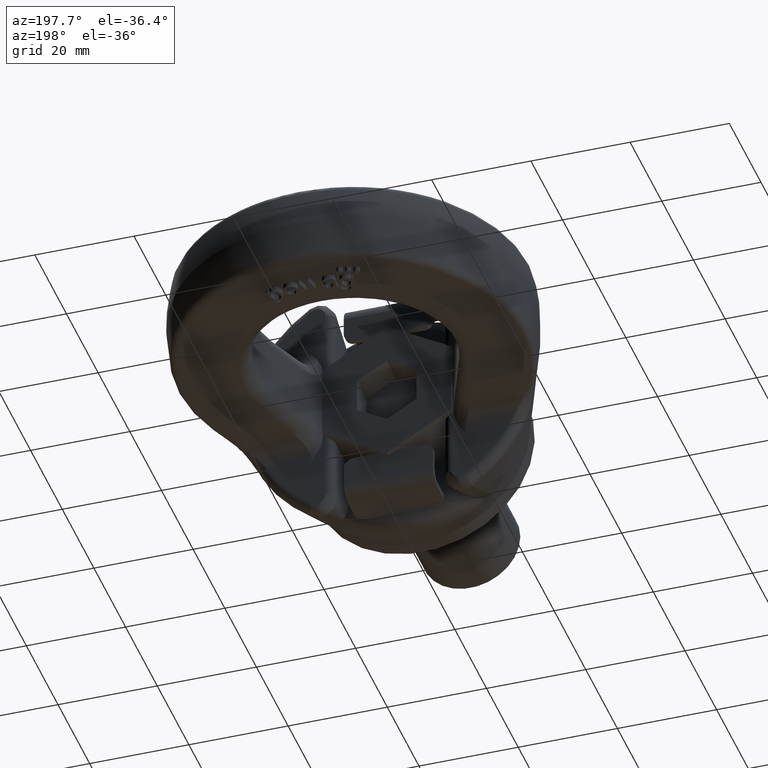
[diagram: clean part render]
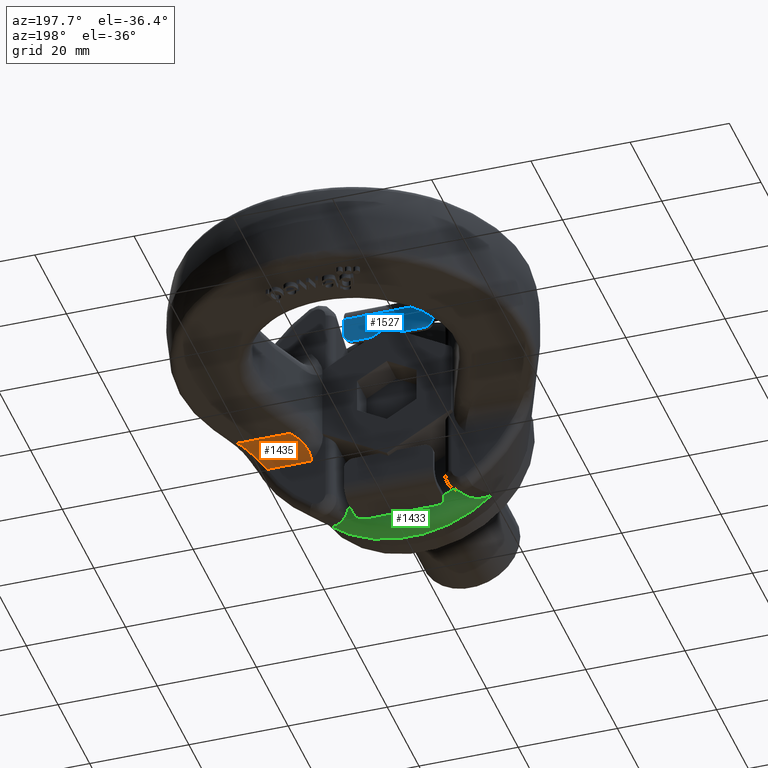
[diagram: same view with three faces highlighted in distinct colors, each labeled with its STEP entity id]
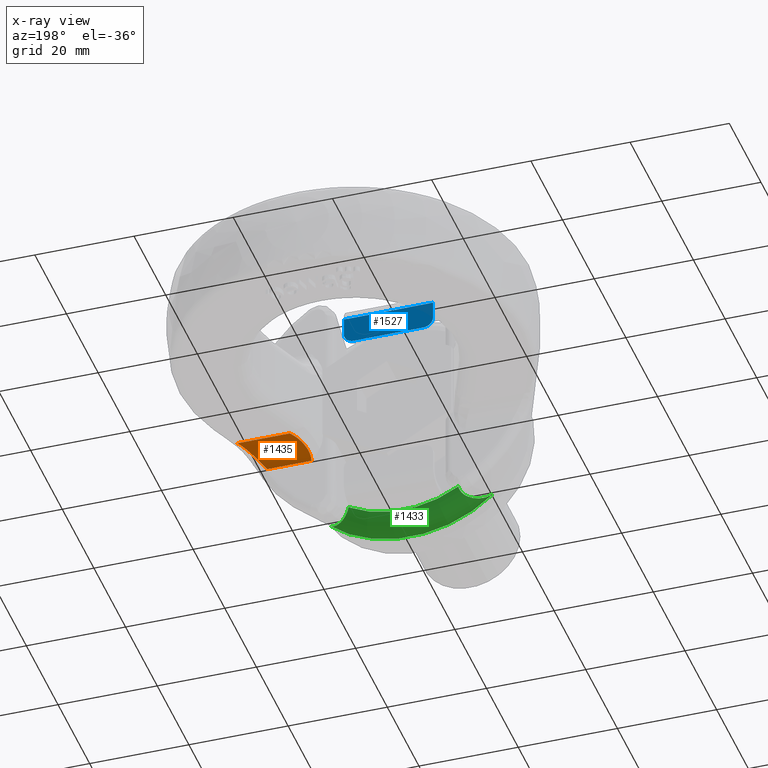
[diagram: x-ray of the same camera — body ghosted, the three highlighted faces saturated]
A machine part, auxiliary view with three faces highlighted in distinct colors.
The next image is the same camera in x-ray (body ghosted, the three faces saturated) — at least one of them is partly hidden behind the body in this view.
Their STEP definitions:

[orange] entity #1435 — the highlighted cylindrical surface (edge-blend (fillet) strip) has radius 4.25 mm, axis along (1, 0, 0).
#1055=ELLIPSE('',#5263,5.21660411703747,4.25);
#1069=CYLINDRICAL_SURFACE('',#5264,4.25);
#1203=FACE_OUTER_BOUND('',#1966,.T.);
#1435=ADVANCED_FACE('',(#1203),#1069,.F.);
#1966=EDGE_LOOP('',(#3381,#3382,#3383,#3384));
#2145=LINE('',#6720,#2425);
#2244=LINE('',#8227,#2552);
#2425=VECTOR('',#5473,1.);
#2552=VECTOR('',#5834,1.);
#3381=ORIENTED_EDGE('',*,*,#4366,.F.);
#3382=ORIENTED_EDGE('',*,*,#4646,.T.);
#3383=ORIENTED_EDGE('',*,*,#4606,.F.);
#3384=ORIENTED_EDGE('',*,*,#4647,.T.);
#3976=VERTEX_POINT('',#6719);
#3977=VERTEX_POINT('',#6721);
#4123=VERTEX_POINT('',#8226);
#4124=VERTEX_POINT('',#8228);
#4366=EDGE_CURVE('',#3976,#3977,#2145,.T.);
#4606=EDGE_CURVE('',#4123,#4124,#2244,.T.);
#4646=EDGE_CURVE('',#3976,#4124,#1055,.T.);
#4647=EDGE_CURVE('',#4123,#3977,#5025,.T.);
#5025=B_SPLINE_CURVE_WITH_KNOTS('',3,(#8486,#8487,#8488,#8489,#8490,#8491),
 .UNSPECIFIED.,.F.,.F.,(4,2,4),(0.,0.5,1.),.UNSPECIFIED.);
#5263=AXIS2_PLACEMENT_3D('',#8485,#5881,#5882);
#5264=AXIS2_PLACEMENT_3D('',#8492,#5883,#5884);
#5473=DIRECTION('',(1.,0.,2.34291072916505E-15));
#5834=DIRECTION('',(-1.,0.,-2.34291072916505E-15));
#5881=DIRECTION('',(-0.814706254231458,0.579873882250397,-1.90878402415675E-15));
#5882=DIRECTION('',(0.579873882250397,0.814706254231458,1.35859274028704E-15));
#5883=DIRECTION('',(1.,0.,2.34291072916505E-15));
#5884=DIRECTION('',(2.44902137784961E-15,0.,-1.));
#6719=CARTESIAN_POINT('',(15.5146977886794,22.,-12.75));
#6720=CARTESIAN_POINT('',(13.2029710922899,22.,-12.75));
#6721=CARTESIAN_POINT('',(24.3800451344666,22.,-12.75));
#8226=CARTESIAN_POINT('',(29.0810240794153,26.25,-8.49999999999994));
#8227=CARTESIAN_POINT('',(-72.,26.25,-8.50000000000018));
#8228=CARTESIAN_POINT('',(18.5396702701893,26.25,-8.49999999999997));
#8485=CARTESIAN_POINT('',(18.5396702701893,26.25,-12.75));
#8486=CARTESIAN_POINT('',(29.0810240794153,26.25,-8.49999999999994));
#8487=CARTESIAN_POINT('',(28.4022316371127,25.0560410544142,-8.49999999999994));
#8488=CARTESIAN_POINT('',(27.6284838507759,23.9634592660522,-9.00212371423378));
#8489=CARTESIAN_POINT('',(26.026977664301,22.4312844282641,-10.5838382877558));
#8490=CARTESIAN_POINT('',(25.1900974362975,21.9999999999999,-11.6436071888001));
#8491=CARTESIAN_POINT('',(24.3800451344666,21.9999999999998,-12.7499999999999));
#8492=CARTESIAN_POINT('',(13.2029710922899,26.25,-12.75));

[blue] entity #1527 — the highlighted planar face has unit normal (0, -1, 0).
#1288=FACE_OUTER_BOUND('',#2065,.T.);
#1527=ADVANCED_FACE('',(#1288),#1656,.F.);
#1656=PLANE('',#5347);
#1740=CIRCLE('',#5345,2.);
#1741=CIRCLE('',#5346,2.);
#2065=EDGE_LOOP('',(#3774,#3775,#3776,#3777,#3778,#3779));
#2323=LINE('',#9545,#2659);
#2331=LINE('',#9567,#2667);
#2336=LINE('',#9580,#2672);
#2340=LINE('',#9594,#2676);
#2659=VECTOR('',#6105,1.);
#2667=VECTOR('',#6121,1.);
#2672=VECTOR('',#6130,1.);
#2676=VECTOR('',#6152,1.);
#3774=ORIENTED_EDGE('',*,*,#4804,.T.);
#3775=ORIENTED_EDGE('',*,*,#4812,.T.);
#3776=ORIENTED_EDGE('',*,*,#4798,.T.);
#3777=ORIENTED_EDGE('',*,*,#4813,.F.);
#3778=ORIENTED_EDGE('',*,*,#4788,.F.);
#3779=ORIENTED_EDGE('',*,*,#4814,.T.);
#4224=VERTEX_POINT('',#9544);
#4225=VERTEX_POINT('',#9546);
#4234=VERTEX_POINT('',#9566);
#4235=VERTEX_POINT('',#9568);
#4240=VERTEX_POINT('',#9579);
#4241=VERTEX_POINT('',#9581);
#4788=EDGE_CURVE('',#4224,#4225,#2323,.T.);
#4798=EDGE_CURVE('',#4235,#4234,#2331,.T.);
#4804=EDGE_CURVE('',#4241,#4240,#2336,.T.);
#4812=EDGE_CURVE('',#4240,#4235,#1740,.T.);
#4813=EDGE_CURVE('',#4225,#4234,#2340,.T.);
#4814=EDGE_CURVE('',#4224,#4241,#1741,.T.);
#5345=AXIS2_PLACEMENT_3D('',#9593,#6150,#6151);
#5346=AXIS2_PLACEMENT_3D('',#9595,#6153,#6154);
#5347=AXIS2_PLACEMENT_3D('',#9596,#6155,#6156);
#6105=DIRECTION('',(0.,0.,1.));
#6121=DIRECTION('',(0.,0.,1.));
#6130=DIRECTION('',(-1.,0.,0.));
#6150=DIRECTION('',(0.,1.,0.));
#6151=DIRECTION('',(0.,0.,-1.));
#6152=DIRECTION('',(-1.,0.,0.));
#6153=DIRECTION('',(0.,1.,0.));
#6154=DIRECTION('',(0.,0.,-1.));
#6155=DIRECTION('',(0.,-1.,0.));
#6156=DIRECTION('',(0.,0.,-1.));
#9544=CARTESIAN_POINT('',(9.,22.,16.));
#9545=CARTESIAN_POINT('',(9.,22.,14.));
#9546=CARTESIAN_POINT('',(9.,22.,19.5));
#9566=CARTESIAN_POINT('',(-9.,22.,19.5));
#9567=CARTESIAN_POINT('',(-9.,22.,14.));
#9568=CARTESIAN_POINT('',(-9.,22.,16.));
#9579=CARTESIAN_POINT('',(-7.,22.,14.));
#9580=CARTESIAN_POINT('',(9.,22.,14.));
#9581=CARTESIAN_POINT('',(7.,22.,14.));
#9593=CARTESIAN_POINT('',(-7.,22.,16.));
#9594=CARTESIAN_POINT('',(9.,22.,19.5));
#9595=CARTESIAN_POINT('',(7.,22.,16.));
#9596=CARTESIAN_POINT('',(9.,22.,14.));

[green] entity #1433 — the highlighted toroidal blend (fillet) surface has major radius 21.2559 mm and minor (blend) radius 3.4 mm.
#1019=TOROIDAL_SURFACE('',#5260,21.2559106500259,3.4);
#1201=FACE_OUTER_BOUND('',#1964,.T.);
#1433=ADVANCED_FACE('',(#1201),#1019,.T.);
#1678=CIRCLE('',#5136,24.4176988226178);
#1714=CIRCLE('',#5251,21.2559106500259);
#1964=EDGE_LOOP('',(#3373,#3374,#3375,#3376));
#3373=ORIENTED_EDGE('',*,*,#4641,.T.);
#3374=ORIENTED_EDGE('',*,*,#4628,.F.);
#3375=ORIENTED_EDGE('',*,*,#4643,.T.);
#3376=ORIENTED_EDGE('',*,*,#4377,.F.);
#3987=VERTEX_POINT('',#6777);
#3988=VERTEX_POINT('',#6779);
#4144=VERTEX_POINT('',#8358);
#4145=VERTEX_POINT('',#8360);
#4377=EDGE_CURVE('',#3987,#3988,#1678,.T.);
#4628=EDGE_CURVE('',#4144,#4145,#1714,.T.);
#4641=EDGE_CURVE('',#3987,#4145,#5021,.T.);
#4643=EDGE_CURVE('',#4144,#3988,#5023,.T.);
#5021=B_SPLINE_CURVE_WITH_KNOTS('',3,(#8414,#8415,#8416,#8417,#8418,#8419,
#8420,#8421),.UNSPECIFIED.,.F.,.F.,(4,2,2,4),(0.,0.5,0.75,1.),
 .UNSPECIFIED.);
#5023=B_SPLINE_CURVE_WITH_KNOTS('',3,(#8456,#8457,#8458,#8459,#8460,#8461,
#8462,#8463),.UNSPECIFIED.,.F.,.F.,(4,2,2,4),(0.,0.25,0.5,1.),
 .UNSPECIFIED.);
#5136=AXIS2_PLACEMENT_3D('',#6778,#5485,#5486);
#5251=AXIS2_PLACEMENT_3D('',#8359,#5850,#5851);
#5260=AXIS2_PLACEMENT_3D('',#8476,#5875,#5876);
#5485=DIRECTION('',(-1.5770213417971E-16,-1.,-3.69482022181868E-31));
#5486=DIRECTION('',(-1.,1.42087384120731E-16,-2.34291072916505E-15));
#5850=DIRECTION('',(1.5770213417971E-16,1.,3.69482022181868E-31));
#5851=DIRECTION('',(1.,-1.63222691752771E-16,2.34291072916505E-15));
#5875=DIRECTION('',(1.5770213417971E-16,1.,3.69482022181868E-31));
#5876=DIRECTION('',(1.,-1.40714614081795E-16,2.34291072916505E-15));
#6777=CARTESIAN_POINT('',(-16.5419806676346,7.84976180203214,-17.9607040893076));
#6778=CARTESIAN_POINT('',(1.14902411672219E-13,7.84976180203215,2.69206093113781E-28));
#6779=CARTESIAN_POINT('',(16.5419806676346,7.84976180203217,-17.9607040893078));
#8358=CARTESIAN_POINT('',(11.0628830905184,12.5,-18.150106205954));
#8359=CARTESIAN_POINT('',(1.55636450816097E-13,12.5,3.64642310466202E-28));
#8360=CARTESIAN_POINT('',(-11.0628830905183,12.5,-18.1501062059538));
#8414=CARTESIAN_POINT('',(-16.5419806676346,7.84976180203213,-17.9607040893076));
#8415=CARTESIAN_POINT('',(-15.8316324894599,8.60399651627309,-19.0204014498863));
#8416=CARTESIAN_POINT('',(-14.8842677160507,9.48019405576699,-19.8545061310448));
#8417=CARTESIAN_POINT('',(-13.222940916901,10.9163207307236,-20.2474090084313));
#8418=CARTESIAN_POINT('',(-12.6328843537352,11.4128177003189,-20.2235139775573));
#8419=CARTESIAN_POINT('',(-11.5756085618499,12.2430108608852,-19.5605597911202));
#8420=CARTESIAN_POINT('',(-11.1911305113138,12.5,-18.8885862321156));
#8421=CARTESIAN_POINT('',(-11.0628830905183,12.5,-18.1501062059538));
#8456=CARTESIAN_POINT('',(11.0628830905184,12.5,-18.150106205954));
#8457=CARTESIAN_POINT('',(11.1911305113139,12.5,-18.8885862321157));
#8458=CARTESIAN_POINT('',(11.57560856185,12.2430108608852,-19.5605597911203));
#8459=CARTESIAN_POINT('',(12.6328843537353,11.4128177003189,-20.2235139775574));
#8460=CARTESIAN_POINT('',(13.2229409169011,10.9163207307236,-20.2474090084314));
#8461=CARTESIAN_POINT('',(14.8842677160508,9.48019405576703,-19.8545061310449));
#8462=CARTESIAN_POINT('',(15.8316324909994,8.60399651823403,-19.0204014495227));
#8463=CARTESIAN_POINT('',(16.5419806676346,7.84976180203216,-17.9607040893078));
#8476=CARTESIAN_POINT('',(1.55100263559886E-13,9.1,3.63386071590783E-28));